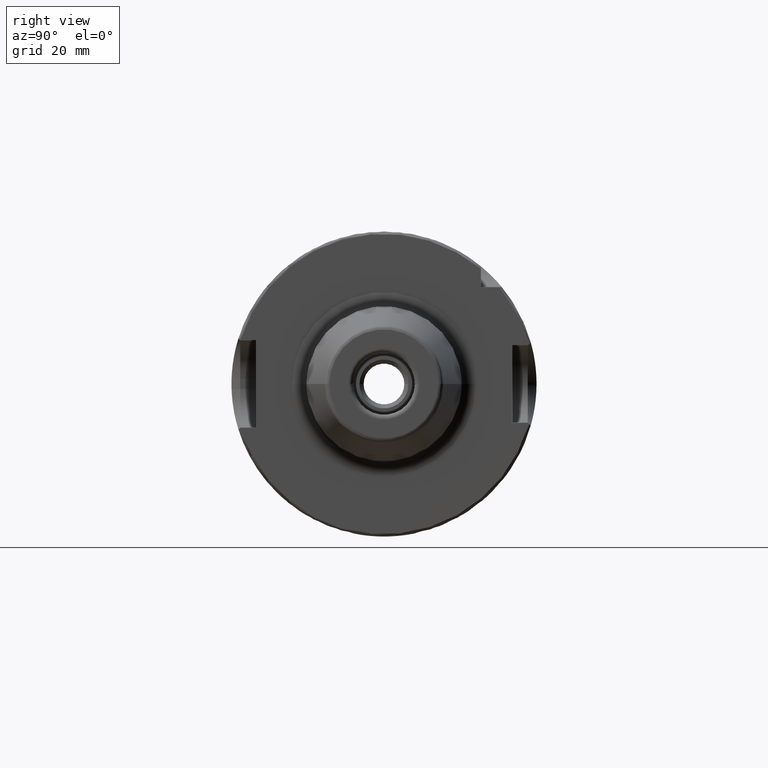
[diagram: clean part render]
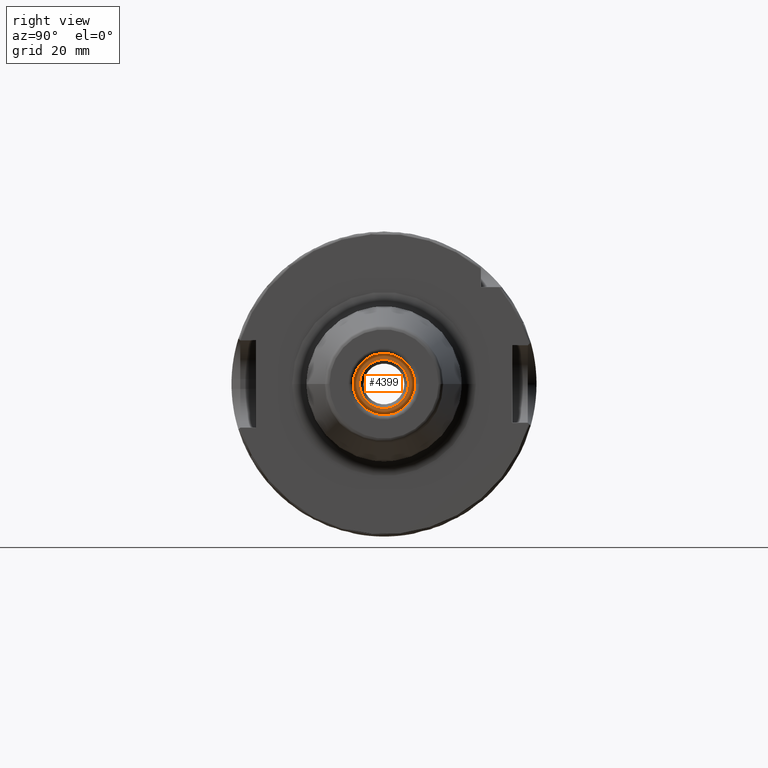
[diagram: same view with one face highlighted and labeled with its STEP entity id]
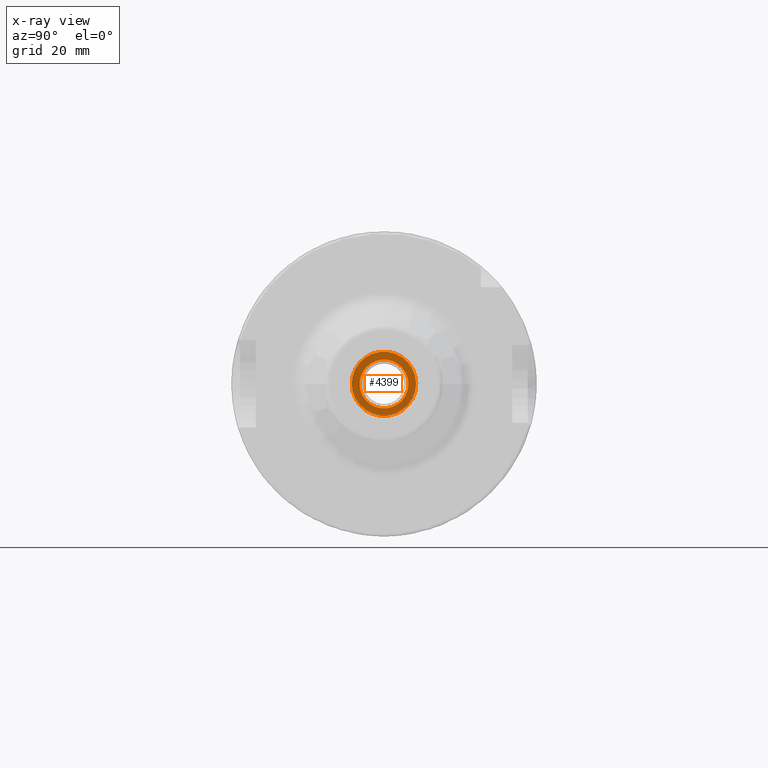
[diagram: x-ray of the same camera — body ghosted, the highlighted face saturated]
A machine part, right view. The second image highlights one B-rep face of the part: STEP entity #4399.
The next image is the same camera in x-ray: the body ghosted, the highlighted face saturated — about 21% of this face is hidden behind the body in this view.
In plain terms, the highlighted planar face has unit normal (-1, 0, 0).
Its self-contained STEP definition (entity closure, byte-faithful):
#1035=CARTESIAN_POINT('',(1.614E0,0.E0,0.E0));
#1036=DIRECTION('',(-1.E0,0.E0,0.E0));
#1037=DIRECTION('',(0.E0,-1.E0,0.E0));
#1038=AXIS2_PLACEMENT_3D('',#1035,#1036,#1037);
#1040=CARTESIAN_POINT('',(1.614E0,0.E0,0.E0));
#1041=DIRECTION('',(-1.E0,0.E0,0.E0));
#1042=DIRECTION('',(0.E0,1.E0,0.E0));
#1043=AXIS2_PLACEMENT_3D('',#1040,#1041,#1042);
#1045=CARTESIAN_POINT('',(1.614E0,0.E0,0.E0));
#1046=DIRECTION('',(1.E0,0.E0,0.E0));
#1047=DIRECTION('',(0.E0,-1.E0,0.E0));
#1048=AXIS2_PLACEMENT_3D('',#1045,#1046,#1047);
#1050=CARTESIAN_POINT('',(1.614E0,0.E0,0.E0));
#1051=DIRECTION('',(1.E0,0.E0,0.E0));
#1052=DIRECTION('',(0.E0,1.E0,0.E0));
#1053=AXIS2_PLACEMENT_3D('',#1050,#1051,#1052);
#3138=CARTESIAN_POINT('',(1.614E0,-2.62E-1,0.E0));
#3139=CARTESIAN_POINT('',(1.614E0,2.62E-1,0.E0));
#3140=VERTEX_POINT('',#3138);
#3141=VERTEX_POINT('',#3139);
#3226=CARTESIAN_POINT('',(1.614E0,-1.99E-1,0.E0));
#3227=CARTESIAN_POINT('',(1.614E0,1.99E-1,0.E0));
#3228=VERTEX_POINT('',#3226);
#3229=VERTEX_POINT('',#3227);
#4383=CARTESIAN_POINT('',(1.614E0,0.E0,0.E0));
#4384=DIRECTION('',(-1.E0,0.E0,0.E0));
#4385=DIRECTION('',(0.E0,-1.E0,0.E0));
#4386=AXIS2_PLACEMENT_3D('',#4383,#4384,#4385);
#4387=PLANE('',#4386);
#4389=ORIENTED_EDGE('',*,*,#4388,.T.);
#4391=ORIENTED_EDGE('',*,*,#4390,.T.);
#4392=EDGE_LOOP('',(#4389,#4391));
#4393=FACE_OUTER_BOUND('',#4392,.F.);
#4394=ORIENTED_EDGE('',*,*,#4373,.T.);
#4396=ORIENTED_EDGE('',*,*,#4395,.T.);
#4397=EDGE_LOOP('',(#4394,#4396));
#4398=FACE_BOUND('',#4397,.F.);
#4399=ADVANCED_FACE('',(#4393,#4398),#4387,.F.);
#1039=CIRCLE('',#1038,2.62E-1);
#1044=CIRCLE('',#1043,2.62E-1);
#1049=CIRCLE('',#1048,1.99E-1);
#1054=CIRCLE('',#1053,1.99E-1);
#4373=EDGE_CURVE('',#3228,#3229,#1049,.T.);
#4388=EDGE_CURVE('',#3140,#3141,#1039,.T.);
#4390=EDGE_CURVE('',#3141,#3140,#1044,.T.);
#4395=EDGE_CURVE('',#3229,#3228,#1054,.T.);